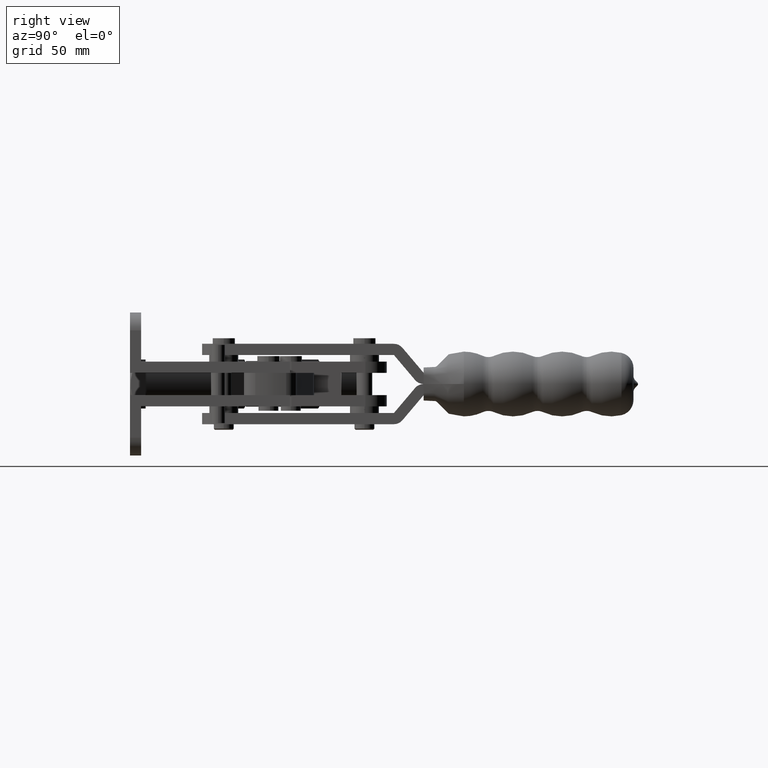
[diagram: clean part render]
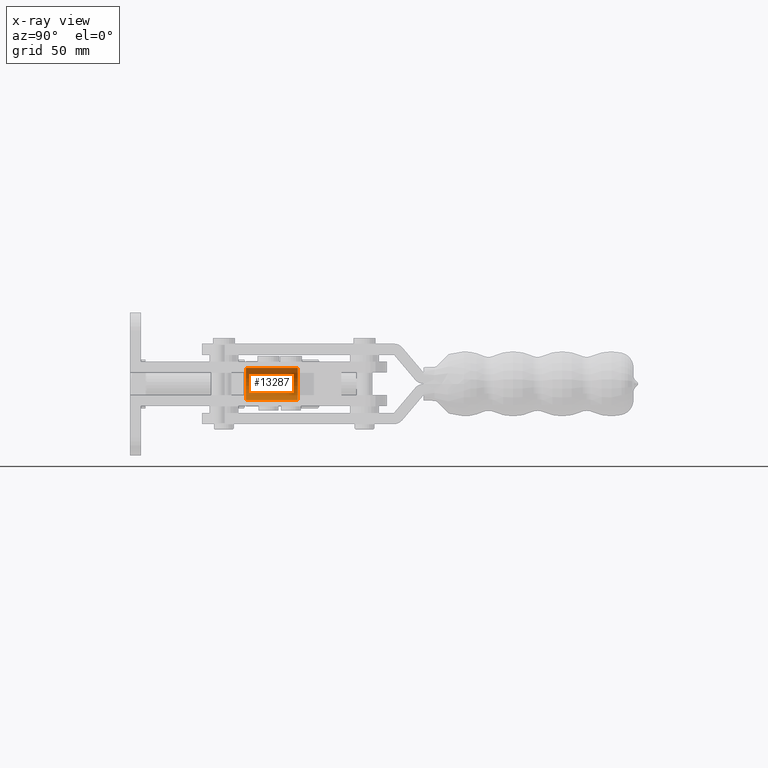
[diagram: x-ray — body ghosted, one internal face saturated and labeled with its STEP entity id]
A machine part, right view, then the same camera in x-ray: the body is ghosted and one INTERNAL B-rep face — a face not visible from any outside direction — is saturated and labeled: STEP entity #13287.
In plain terms, the highlighted cylindrical surface (edge-blend (fillet) strip) has radius 7.15 mm, axis along (-0, 1, -0).
Its self-contained STEP definition (entity closure, byte-faithful):
#273 = ORIENTED_EDGE ( 'NONE', *, *, #11382, .F. ) ;
#856 = CIRCLE ( 'NONE', #4237, 7.150000000000000400 ) ;
#2864 = EDGE_CURVE ( 'NONE', #23423, #3229, #856, .T. ) ;
#3229 = VERTEX_POINT ( 'NONE', #13048 ) ;
#4237 = AXIS2_PLACEMENT_3D ( 'NONE', #6534, #18245, #4591 ) ;
#4591 = DIRECTION ( 'NONE',  ( 0.0000000000000000000, 0.0000000000000000000, -1.000000000000000000 ) ) ;
#4805 = CARTESIAN_POINT ( 'NONE',  ( -216.7747981422687600, 77.25071213382482000, -2.633498532861798500E-014 ) ) ;
#5130 = CYLINDRICAL_SURFACE ( 'NONE', #23526, 7.150000000000000400 ) ;
#5521 = AXIS2_PLACEMENT_3D ( 'NONE', #10795, #24470, #12746 ) ;
#5738 = VECTOR ( 'NONE', #10587, 1000.000000000000000 ) ;
#6534 = CARTESIAN_POINT ( 'NONE',  ( -216.7747981422687600, 100.4507121338248200, -2.917616590263984500E-014 ) ) ;
#6556 = CARTESIAN_POINT ( 'NONE',  ( -216.7747981422687600, 77.25071213382482000, -7.150000000000026100 ) ) ;
#6823 = DIRECTION ( 'NONE',  ( 0.0000000000000000000, 0.0000000000000000000, 1.000000000000000000 ) ) ;
#7583 = FACE_OUTER_BOUND ( 'NONE', #19035, .T. ) ;
#8769 = CARTESIAN_POINT ( 'NONE',  ( -216.7747981422687600, 77.25071213382482000, 7.149999999999973700 ) ) ;
#10587 = DIRECTION ( 'NONE',  ( -1.245933988270634800E-016, 1.000000000000000000, -1.224646799147353500E-016 ) ) ;
#10795 = CARTESIAN_POINT ( 'NONE',  ( -216.7747981422687600, 77.25071213382482000, -2.633498532861798500E-014 ) ) ;
#11382 = EDGE_CURVE ( 'NONE', #14399, #23423, #14659, .T. ) ;
#12057 = CARTESIAN_POINT ( 'NONE',  ( -216.7747981422687600, 100.4507121338248200, 7.149999999999971000 ) ) ;
#12746 = DIRECTION ( 'NONE',  ( 0.0000000000000000000, 0.0000000000000000000, -1.000000000000000000 ) ) ;
#13048 = CARTESIAN_POINT ( 'NONE',  ( -216.7747981422687600, 100.4507121338248200, -7.150000000000029700 ) ) ;
#13084 = ORIENTED_EDGE ( 'NONE', *, *, #23636, .T. ) ;
#13287 = ADVANCED_FACE ( 'NONE', ( #7583 ), #5130, .F. ) ;
#13786 = EDGE_CURVE ( 'NONE', #14399, #24295, #16709, .T. ) ;
#14399 = VERTEX_POINT ( 'NONE', #17357 ) ;
#14659 = LINE ( 'NONE', #8769, #21705 ) ;
#16709 = CIRCLE ( 'NONE', #5521, 7.150000000000000400 ) ;
#17357 = CARTESIAN_POINT ( 'NONE',  ( -216.7747981422687600, 77.25071213382482000, 7.149999999999973700 ) ) ;
#18245 = DIRECTION ( 'NONE',  ( 1.245933988270634800E-016, -1.000000000000000000, 1.224646799147353500E-016 ) ) ;
#19035 = EDGE_LOOP ( 'NONE', ( #19067, #13084, #23033, #273 ) ) ;
#19067 = ORIENTED_EDGE ( 'NONE', *, *, #13786, .T. ) ;
#21705 = VECTOR ( 'NONE', #22388, 1000.000000000000000 ) ;
#22388 = DIRECTION ( 'NONE',  ( -1.245933988270634800E-016, 1.000000000000000000, -1.224646799147353500E-016 ) ) ;
#22529 = LINE ( 'NONE', #6556, #5738 ) ;
#23033 = ORIENTED_EDGE ( 'NONE', *, *, #2864, .F. ) ;
#23423 = VERTEX_POINT ( 'NONE', #12057 ) ;
#23526 = AXIS2_PLACEMENT_3D ( 'NONE', #4805, #24361, #6823 ) ;
#23636 = EDGE_CURVE ( 'NONE', #24295, #3229, #22529, .T. ) ;
#24222 = CARTESIAN_POINT ( 'NONE',  ( -216.7747981422687600, 77.25071213382482000, -7.150000000000026100 ) ) ;
#24295 = VERTEX_POINT ( 'NONE', #24222 ) ;
#24361 = DIRECTION ( 'NONE',  ( -1.245933988270634800E-016, 1.000000000000000000, -1.224646799147353500E-016 ) ) ;
#24470 = DIRECTION ( 'NONE',  ( 1.245933988270634800E-016, -1.000000000000000000, 1.224646799147353500E-016 ) ) ;